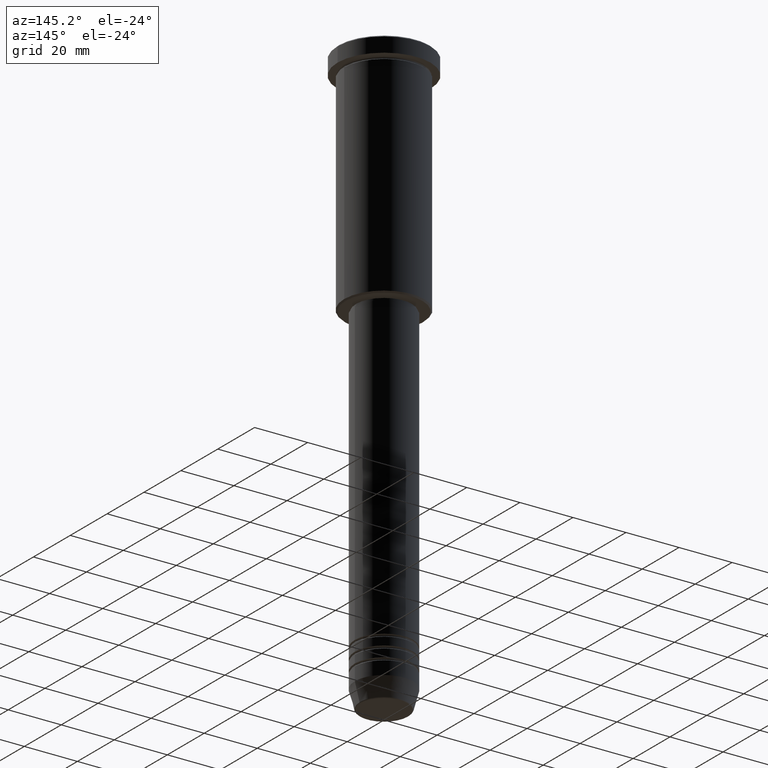
[diagram: clean part render]
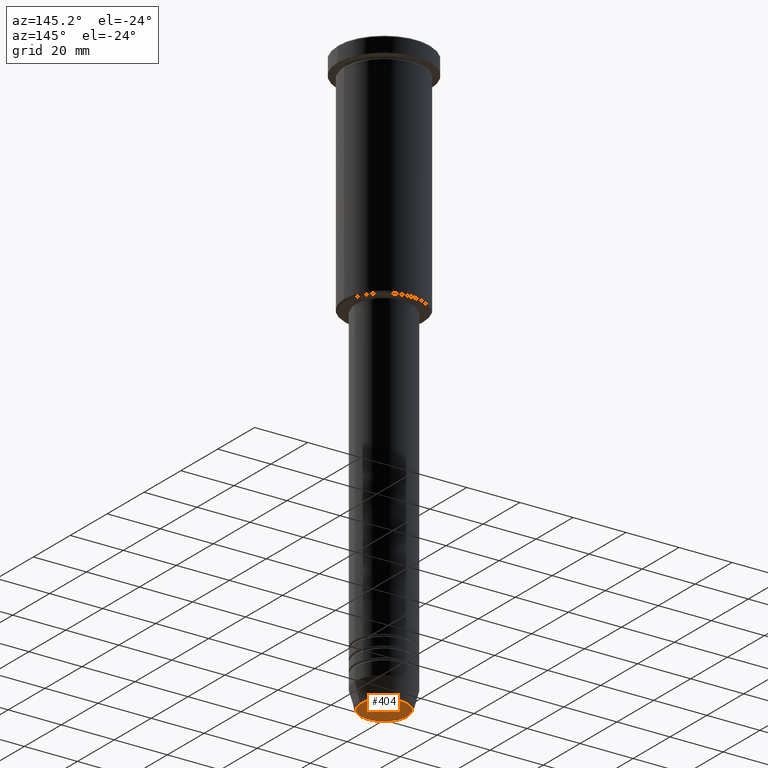
[diagram: same view with one face highlighted and labeled with its STEP entity id]
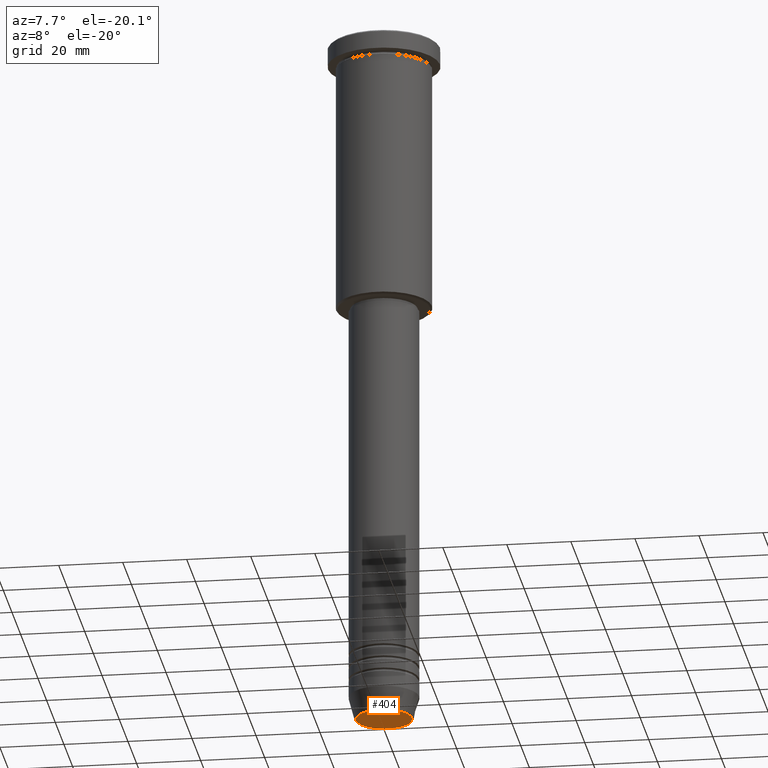
[diagram: same view with one face highlighted and labeled with its STEP entity id]
A machine part, auxiliary view. The second image highlights one B-rep face of the part: STEP entity #404.
A second angle (auxiliary view) of the same face is appended — the face is thin or edge-on in the first view.
In plain terms, the highlighted planar face has unit normal (0, -0, 1).
Its self-contained STEP definition (entity closure, byte-faithful):
#22 = CARTESIAN_POINT ( 'NONE',  ( -8.740692158992656502, 1.099999016768739653E-15, -221.0000000000000284 ) ) ;
#112 = VERTEX_POINT ( 'NONE', #22 ) ;
#122 = CARTESIAN_POINT ( 'NONE',  ( 0.000000000000000000, 0.000000000000000000, -221.0000000000000284 ) ) ;
#153 = CIRCLE ( 'NONE', #1007, 8.740692158992656502 ) ;
#156 = AXIS2_PLACEMENT_3D ( 'NONE', #385, #376, #843 ) ;
#184 = EDGE_CURVE ( 'NONE', #112, #223, #153, .T. ) ;
#223 = VERTEX_POINT ( 'NONE', #395 ) ;
#326 = DIRECTION ( 'NONE',  ( 0.000000000000000000, 0.000000000000000000, -1.000000000000000000 ) ) ;
#335 = AXIS2_PLACEMENT_3D ( 'NONE', #1083, #436, #1073 ) ;
#353 = PLANE ( 'NONE',  #335 ) ;
#367 = FACE_OUTER_BOUND ( 'NONE', #769, .T. ) ;
#376 = DIRECTION ( 'NONE',  ( 0.000000000000000000, 0.000000000000000000, -1.000000000000000000 ) ) ;
#385 = CARTESIAN_POINT ( 'NONE',  ( 0.000000000000000000, 0.000000000000000000, -221.0000000000000284 ) ) ;
#395 = CARTESIAN_POINT ( 'NONE',  ( 8.740692158992656502, 0.000000000000000000, -221.0000000000000284 ) ) ;
#404 = ADVANCED_FACE ( 'NONE', ( #367 ), #353, .F. ) ;
#431 = ORIENTED_EDGE ( 'NONE', *, *, #675, .T. ) ;
#436 = DIRECTION ( 'NONE',  ( 0.000000000000000000, -0.000000000000000000, 1.000000000000000000 ) ) ;
#561 = CIRCLE ( 'NONE', #156, 8.740692158992656502 ) ;
#675 = EDGE_CURVE ( 'NONE', #223, #112, #561, .T. ) ;
#678 = DIRECTION ( 'NONE',  ( 1.000000000000000000, 0.000000000000000000, 0.000000000000000000 ) ) ;
#769 = EDGE_LOOP ( 'NONE', ( #431, #981 ) ) ;
#843 = DIRECTION ( 'NONE',  ( 1.000000000000000000, 0.000000000000000000, 0.000000000000000000 ) ) ;
#981 = ORIENTED_EDGE ( 'NONE', *, *, #184, .T. ) ;
#1007 = AXIS2_PLACEMENT_3D ( 'NONE', #122, #326, #678 ) ;
#1073 = DIRECTION ( 'NONE',  ( 1.000000000000000000, 0.000000000000000000, 0.000000000000000000 ) ) ;
#1083 = CARTESIAN_POINT ( 'NONE',  ( 0.000000000000000000, 0.000000000000000000, -221.0000000000000284 ) ) ;